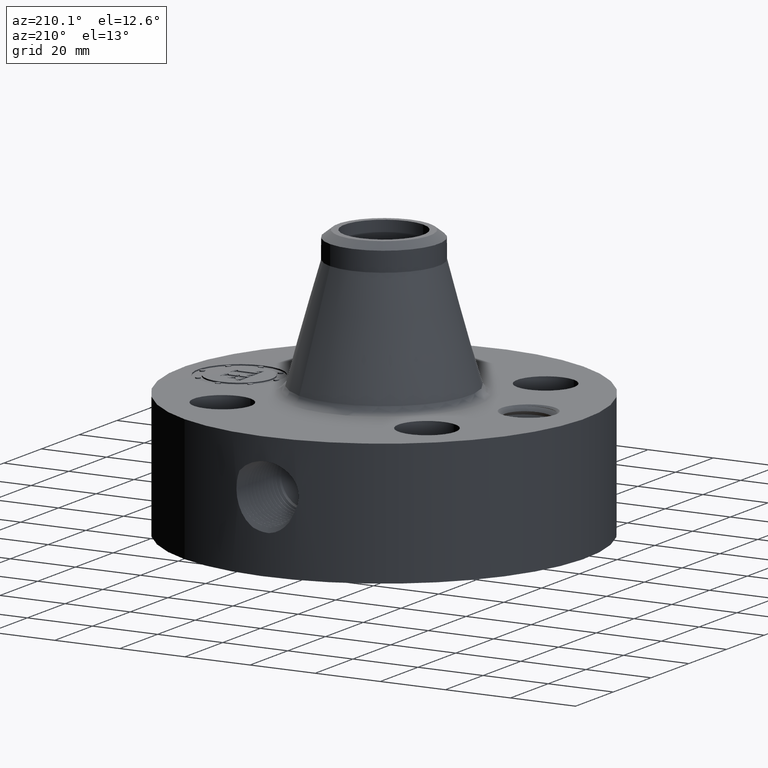
[diagram: clean part render]
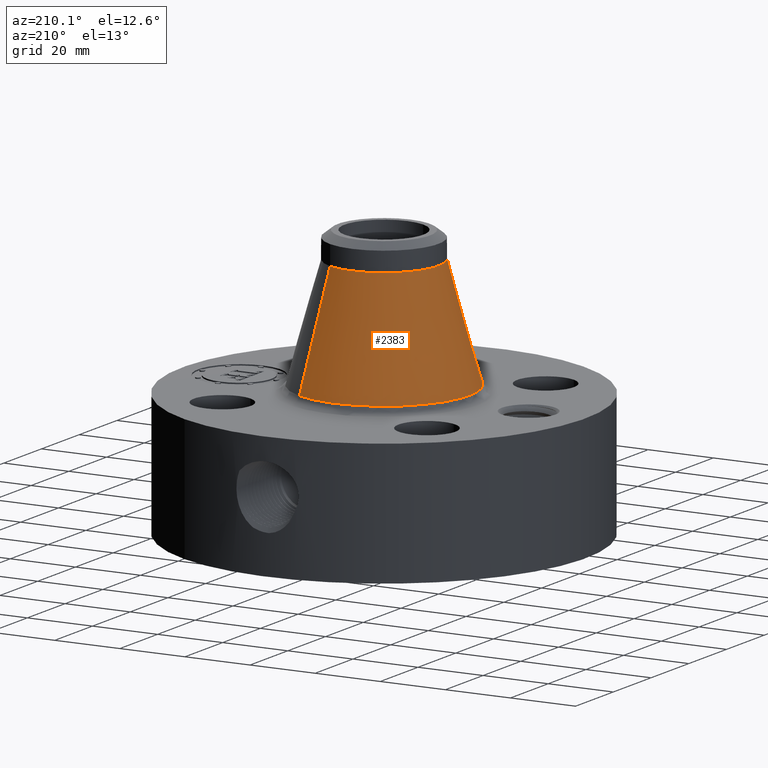
[diagram: same view with one face highlighted and labeled with its STEP entity id]
A machine part, auxiliary view. The second image highlights one B-rep face of the part: STEP entity #2383.
In plain terms, the highlighted conical surface has half-angle 15.576 deg.
Its self-contained STEP definition (entity closure, byte-faithful):
#1778=AXIS2_PLACEMENT_3D('Circle Axis2P3D',#1776,#1777,$) ;
#2344=AXIS2_PLACEMENT_3D('Cone Axis2P3D',#2341,#2342,#2343) ;
#2374=AXIS2_PLACEMENT_3D('Circle Axis2P3D',#2372,#2373,$) ;
#1754=CARTESIAN_POINT('Vertex',(0.496460113538,0.908764142151,1.64777740799)) ;
#1761=CARTESIAN_POINT('Vertex',(-0.496460113538,-0.908764142151,1.64777740799)) ;
#1776=CARTESIAN_POINT('Axis2P3D Location',(0.,0.,1.64777740799)) ;
#2341=CARTESIAN_POINT('Axis2P3D Location',(0.,0.,2.99492912713)) ;
#2346=CARTESIAN_POINT('Line Origine',(0.406440484509,0.743984316501,2.32135326756)) ;
#2350=CARTESIAN_POINT('Vertex',(0.31642085548,0.57920449085,2.99492912713)) ;
#2357=CARTESIAN_POINT('Vertex',(-0.31642085548,-0.57920449085,2.99492912713)) ;
#2360=CARTESIAN_POINT('Line Origine',(-0.406440484509,-0.743984316501,2.32135326756)) ;
#2372=CARTESIAN_POINT('Axis2P3D Location',(0.,0.,2.99492912713)) ;
#1777=DIRECTION('Axis2P3D Direction',(0.,0.,-0.0393700787402)) ;
#2342=DIRECTION('Axis2P3D Direction',(0.,0.,-0.0393700787402)) ;
#2343=DIRECTION('Axis2P3D XDirection',(-0.0188750212049,-0.0345504945626,0.)) ;
#2347=DIRECTION('Vector Direction',(0.00506835089648,0.00927755408533,-0.0379241599695)) ;
#2361=DIRECTION('Vector Direction',(-0.00506835089648,-0.00927755408533,-0.0379241599695)) ;
#2373=DIRECTION('Axis2P3D Direction',(0.,0.,-0.0393700787402)) ;
#2348=VECTOR('Line Direction',#2347,0.0393700787402) ;
#2362=VECTOR('Line Direction',#2361,0.0393700787402) ;
#2378=ORIENTED_EDGE('',*,*,#1780,.F.) ;
#2379=ORIENTED_EDGE('',*,*,#2364,.T.) ;
#2380=ORIENTED_EDGE('',*,*,#2376,.T.) ;
#2381=ORIENTED_EDGE('',*,*,#2352,.F.) ;
#2383=ADVANCED_FACE('PartBody',(#2382),#2345,.T.) ;
#1779=CIRCLE('generated circle',#1778,1.03553122135) ;
#2375=CIRCLE('generated circle',#2374,0.660000000003) ;
#2345=CONICAL_SURFACE('Cone',#2344,0.660000000003,0.271857936206) ;
#1780=EDGE_CURVE('',#1762,#1755,#1779,.T.) ;
#2352=EDGE_CURVE('',#1755,#2351,#2349,.F.) ;
#2364=EDGE_CURVE('',#1762,#2358,#2363,.F.) ;
#2376=EDGE_CURVE('',#2358,#2351,#2375,.T.) ;
#2377=EDGE_LOOP('',(#2378,#2379,#2380,#2381)) ;
#2382=FACE_OUTER_BOUND('',#2377,.T.) ;
#2349=LINE('Line',#2346,#2348) ;
#2363=LINE('Line',#2360,#2362) ;
#1755=VERTEX_POINT('',#1754) ;
#1762=VERTEX_POINT('',#1761) ;
#2351=VERTEX_POINT('',#2350) ;
#2358=VERTEX_POINT('',#2357) ;